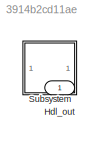
MODEL slx_3914b2cd11ae
KIND model
CONFIG AbsTol = auto
CONFIG EnableMultiTasking = off
CONFIG FixedStep = auto
CONFIG MaxStep = auto
CONFIG MinStep = auto
CONFIG RelTol = 1e-3
CONFIG SampleTimeConstraint = Unconstrained
CONFIG SolverName = VariableStepAuto
CONFIG StartTime = 0.0
CONFIG StopTime = 10.0
BLOCK [Outport] Hdl_out
  OutDataTypeStr = uint8
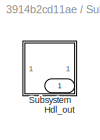
BLOCK [SubSystem] Subsystem
BLOCK [Outport] Subsystem/Hdl_out
  OutDataTypeStr = uint8
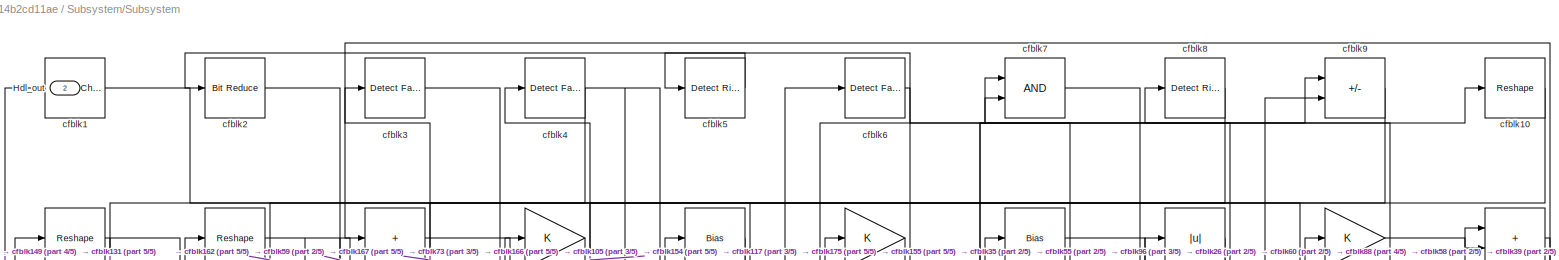
[diagram: Subsystem/Subsystem - part 1/5, full width, top band]
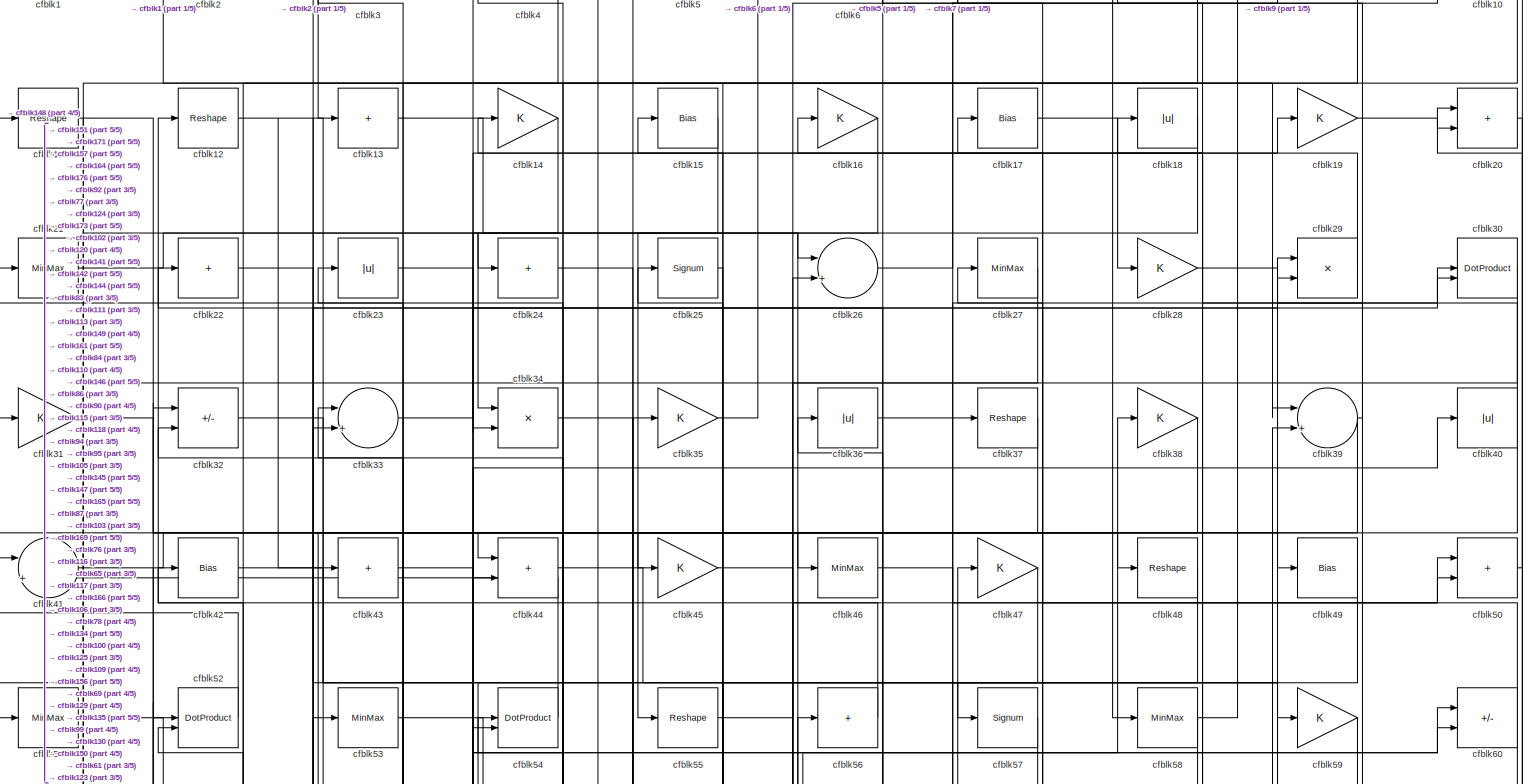
[diagram: Subsystem/Subsystem - part 2/5, full width, top band]
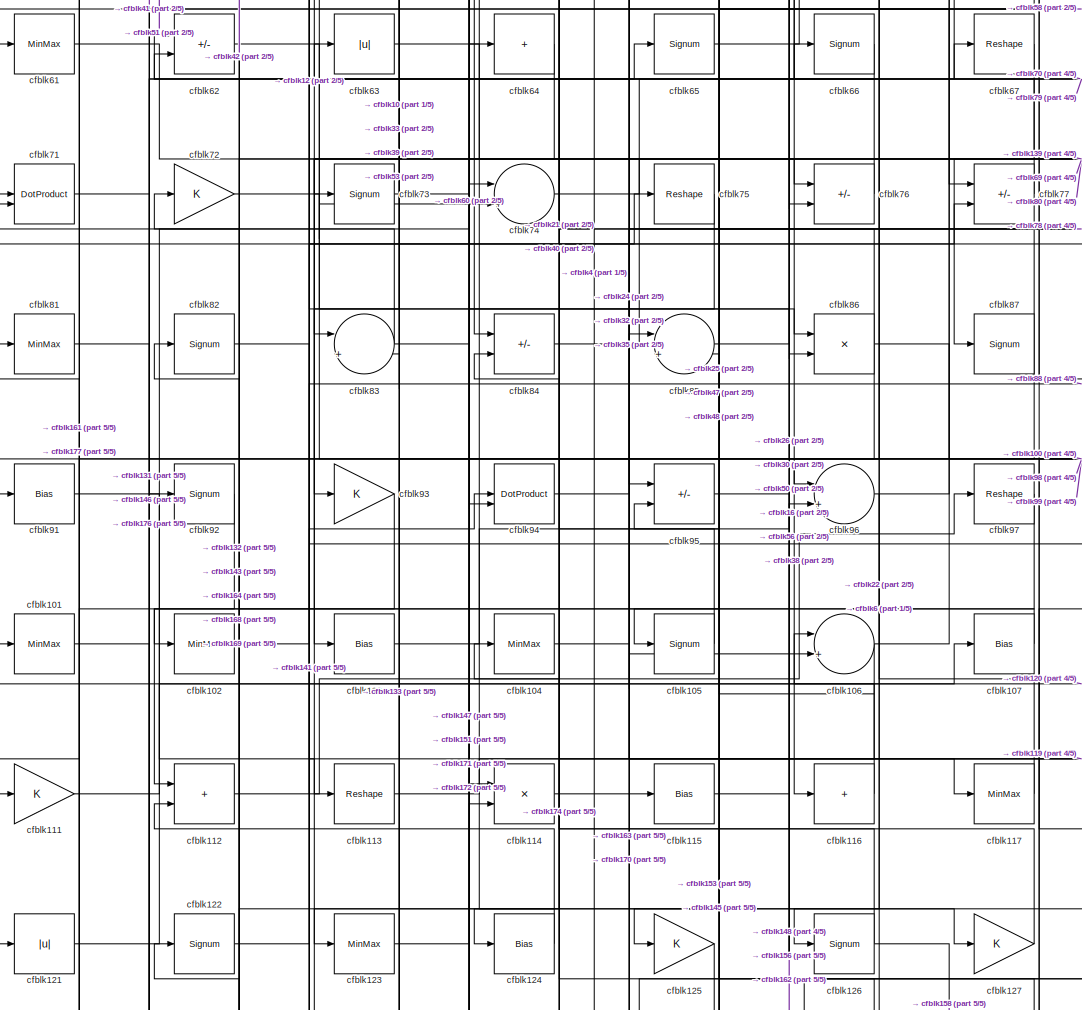
[diagram: Subsystem/Subsystem - part 3/5, central region]
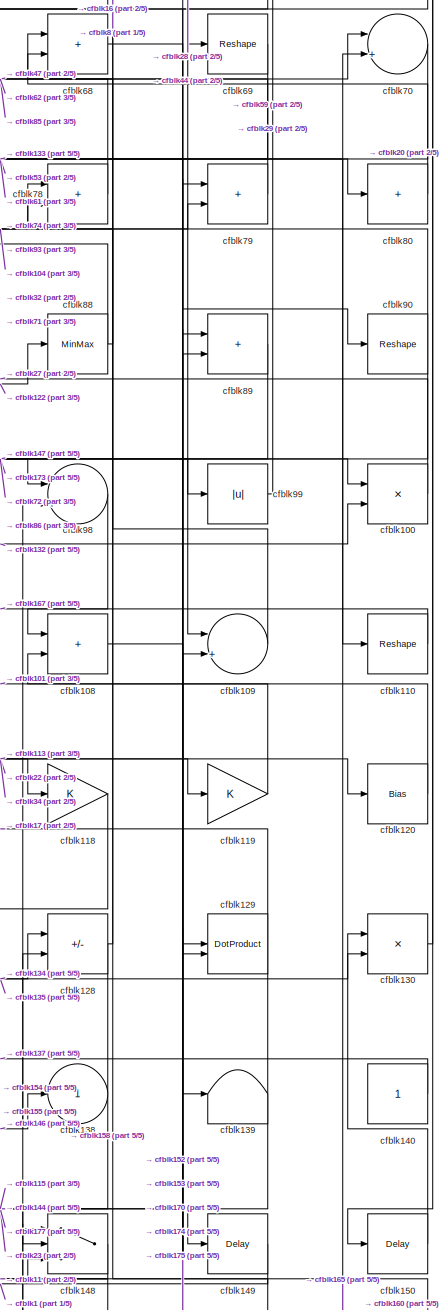
[diagram: Subsystem/Subsystem - part 4/5, middle right region]
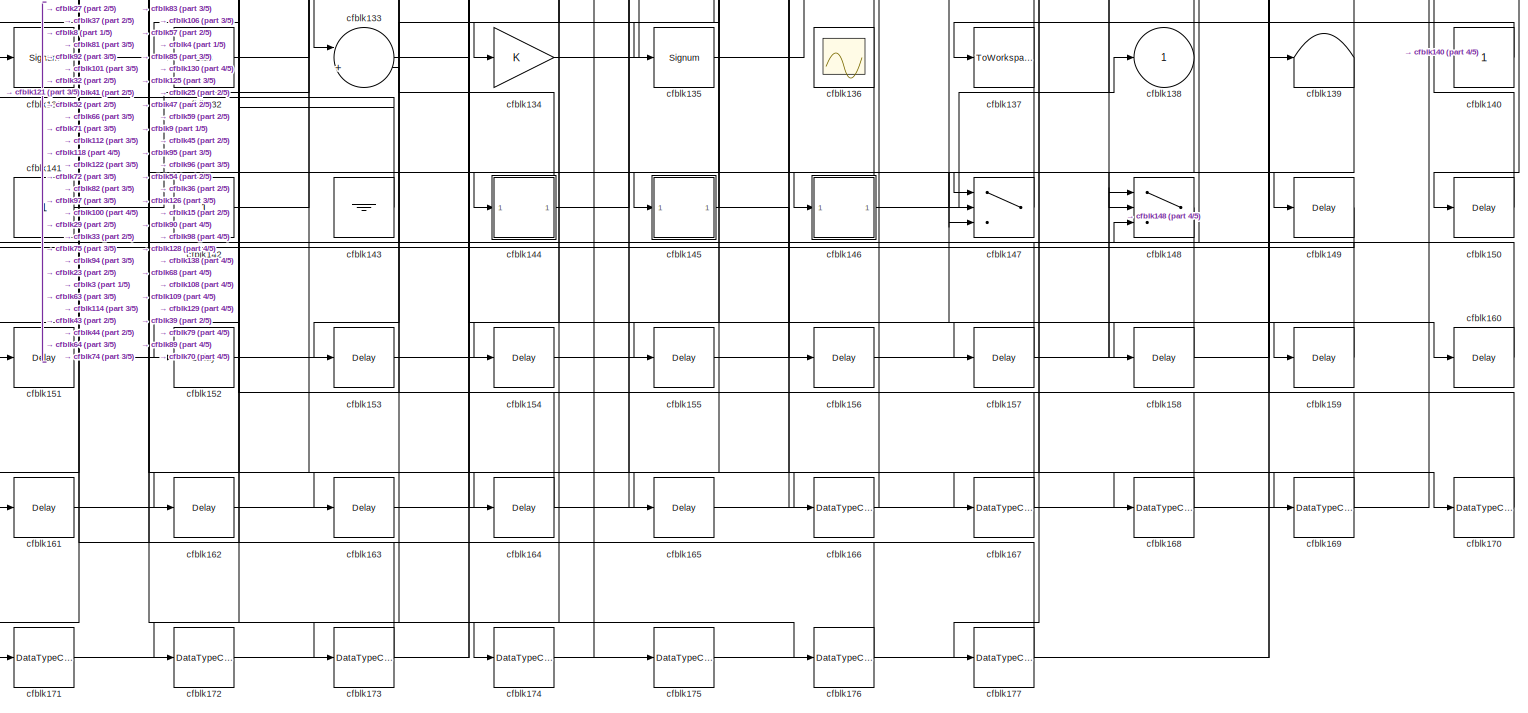
[diagram: Subsystem/Subsystem - part 5/5, full width, bottom band]
BLOCK [SubSystem] Subsystem/Subsystem
BLOCK [Outport] Subsystem/Subsystem/Hdl_out
  OutDataTypeStr = uint8
  Port = 2
BLOCK [Reference] Subsystem/Subsystem/cfblk1  REF=simulink/Logic and Bit
Operations/Detect
Change
  LibrarySourceBlock = hdlsllib/Logic and Bit\nOperations/Detect\nChange
  SourceBlock = simulink/Logic and Bit\nOperations/Detect\nChange
  SourceType = Detect Change
BLOCK [Reshape] Subsystem/Subsystem/cfblk10
BLOCK [Product] Subsystem/Subsystem/cfblk100
  Inputs = */
  OutDataTypeStr = uint8
  RndMeth = Zero
  SaturateOnIntegerOverflow = on
BLOCK [MinMax] Subsystem/Subsystem/cfblk101
  OutDataTypeStr = uint8
BLOCK [MinMax] Subsystem/Subsystem/cfblk102
  OutDataTypeStr = uint8
BLOCK [Bias] Subsystem/Subsystem/cfblk103
  Bias = 0.0
  SaturateOnIntegerOverflow = off
BLOCK [MinMax] Subsystem/Subsystem/cfblk104
  OutDataTypeStr = uint8
BLOCK [Signum] Subsystem/Subsystem/cfblk105
BLOCK [Sum] Subsystem/Subsystem/cfblk106
  Inputs = |++
  OutDataTypeStr = uint8
BLOCK [Bias] Subsystem/Subsystem/cfblk107
  Bias = 0.0
  SaturateOnIntegerOverflow = off
BLOCK [Sum] Subsystem/Subsystem/cfblk108
  IconShape = rectangular
  OutDataTypeStr = uint8
BLOCK [Sum] Subsystem/Subsystem/cfblk109
  Inputs = |++
  OutDataTypeStr = uint8
BLOCK [Reshape] Subsystem/Subsystem/cfblk11
BLOCK [Reshape] Subsystem/Subsystem/cfblk110
BLOCK [Gain] Subsystem/Subsystem/cfblk111
  OutDataTypeStr = uint8
BLOCK [Sum] Subsystem/Subsystem/cfblk112
  IconShape = rectangular
  OutDataTypeStr = uint8
BLOCK [Reshape] Subsystem/Subsystem/cfblk113
BLOCK [Product] Subsystem/Subsystem/cfblk114
  Inputs = */
  OutDataTypeStr = uint8
  RndMeth = Zero
  SaturateOnIntegerOverflow = on
BLOCK [Bias] Subsystem/Subsystem/cfblk115
  Bias = 0.0
  SaturateOnIntegerOverflow = off
BLOCK [Sum] Subsystem/Subsystem/cfblk116
  IconShape = rectangular
  Inputs = +
  OutDataTypeStr = uint8
BLOCK [MinMax] Subsystem/Subsystem/cfblk117
  OutDataTypeStr = uint8
BLOCK [Gain] Subsystem/Subsystem/cfblk118
  OutDataTypeStr = uint8
BLOCK [Gain] Subsystem/Subsystem/cfblk119
  OutDataTypeStr = uint8
BLOCK [Reshape] Subsystem/Subsystem/cfblk12
BLOCK [Bias] Subsystem/Subsystem/cfblk120
  Bias = 0.0
  SaturateOnIntegerOverflow = off
BLOCK [Abs] Subsystem/Subsystem/cfblk121
  OutDataTypeStr = uint8
  SaturateOnIntegerOverflow = off
BLOCK [Signum] Subsystem/Subsystem/cfblk122
BLOCK [MinMax] Subsystem/Subsystem/cfblk123
  OutDataTypeStr = uint8
BLOCK [Bias] Subsystem/Subsystem/cfblk124
  Bias = 0.0
  SaturateOnIntegerOverflow = off
BLOCK [Gain] Subsystem/Subsystem/cfblk125
  OutDataTypeStr = uint8
BLOCK [Signum] Subsystem/Subsystem/cfblk126
BLOCK [Gain] Subsystem/Subsystem/cfblk127
  OutDataTypeStr = uint8
BLOCK [Sum] Subsystem/Subsystem/cfblk128
  IconShape = rectangular
  Inputs = +-
  OutDataTypeStr = uint8
BLOCK [DotProduct] Subsystem/Subsystem/cfblk129
  OutDataTypeStr = uint8
BLOCK [Sum] Subsystem/Subsystem/cfblk13
  IconShape = rectangular
  Inputs = +
  OutDataTypeStr = uint8
BLOCK [Product] Subsystem/Subsystem/cfblk130
  Inputs = */
  OutDataTypeStr = uint8
  RndMeth = Zero
  SaturateOnIntegerOverflow = on
BLOCK [Signum] Subsystem/Subsystem/cfblk131
BLOCK [Bias] Subsystem/Subsystem/cfblk132
  Bias = 0.0
  SaturateOnIntegerOverflow = off
BLOCK [Sum] Subsystem/Subsystem/cfblk133
  Inputs = |++
  OutDataTypeStr = uint8
BLOCK [Gain] Subsystem/Subsystem/cfblk134
  OutDataTypeStr = uint8
BLOCK [Signum] Subsystem/Subsystem/cfblk135
BLOCK [Scope] Subsystem/Subsystem/cfblk136
  Floating = on
  NumInputPorts = 1
  ScopeSpecificationString = Simulink.scopes.TimeScopeBlockCfg('CurrentConfiguration', extmgr.ConfigurationSet(extmgr.Configuration('Core','General UI',true,'FigureColor',[0.156862745098039 0.156862745098039 0.156862745098039]),extmgr.Configuration('Core','Source UI',true),extmgr.Configuration('Sources','WiredSimulink',true,'DataLoggingSaveFormat','StructureWithTime','DataLoggingLimitDataPoints',true,'DataLoggingDecimation','...<+2674ch>
BLOCK [ToWorkspace] Subsystem/Subsystem/cfblk137
  MaxDataPoints = inf
  SampleTime = -1
  SaveFormat = Timeseries
  VariableName = simout
BLOCK [Outport] Subsystem/Subsystem/cfblk138
  OutDataTypeStr = uint8
  VectorParamsAs1DForOutWhenUnconnected = off
BLOCK [Terminator] Subsystem/Subsystem/cfblk139
BLOCK [Gain] Subsystem/Subsystem/cfblk14
  OutDataTypeStr = uint8
BLOCK [Constant] Subsystem/Subsystem/cfblk140
  OutDataTypeStr = uint8
  SampleTime = -1
BLOCK [Constant] Subsystem/Subsystem/cfblk141
  OutDataTypeStr = uint8
  SampleTime = -1
BLOCK [Constant] Subsystem/Subsystem/cfblk142
  OutDataTypeStr = uint8
  SampleTime = -1
BLOCK [Ground] Subsystem/Subsystem/cfblk143
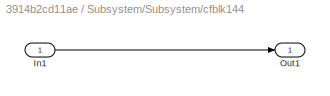
BLOCK [SubSystem] Subsystem/Subsystem/cfblk144
  LibrarySourceBlock = hdlsllib/Ports &\nSubsystems/Subsystem
BLOCK [Inport] Subsystem/Subsystem/cfblk144/In1
BLOCK [Outport] Subsystem/Subsystem/cfblk144/Out1
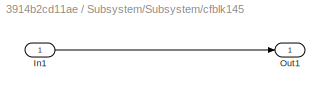
BLOCK [SubSystem] Subsystem/Subsystem/cfblk145
  LibrarySourceBlock = hdlsllib/Ports &\nSubsystems/Subsystem
BLOCK [Inport] Subsystem/Subsystem/cfblk145/In1
BLOCK [Outport] Subsystem/Subsystem/cfblk145/Out1
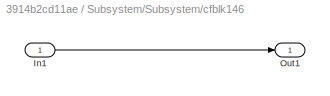
BLOCK [SubSystem] Subsystem/Subsystem/cfblk146
  LibrarySourceBlock = hdlsllib/Ports &\nSubsystems/Subsystem
BLOCK [Inport] Subsystem/Subsystem/cfblk146/In1
BLOCK [Outport] Subsystem/Subsystem/cfblk146/Out1
BLOCK [Switch] Subsystem/Subsystem/cfblk147
  InputSameDT = off
  OutDataTypeStr = uint8
  SaturateOnIntegerOverflow = off
BLOCK [Switch] Subsystem/Subsystem/cfblk148
  InputSameDT = off
  OutDataTypeStr = uint8
  SaturateOnIntegerOverflow = off
BLOCK [Delay] Subsystem/Subsystem/cfblk149
  InputPortMap = u0
  SampleTime = 1
BLOCK [Bias] Subsystem/Subsystem/cfblk15
  Bias = 0.0
  SaturateOnIntegerOverflow = off
BLOCK [Delay] Subsystem/Subsystem/cfblk150
  InputPortMap = u0
  SampleTime = 1
BLOCK [Delay] Subsystem/Subsystem/cfblk151
  InputPortMap = u0
  SampleTime = 1
BLOCK [Delay] Subsystem/Subsystem/cfblk152
  InputPortMap = u0
  SampleTime = 1
BLOCK [Delay] Subsystem/Subsystem/cfblk153
  InputPortMap = u0
  SampleTime = 1
BLOCK [Delay] Subsystem/Subsystem/cfblk154
  InputPortMap = u0
  SampleTime = 1
BLOCK [Delay] Subsystem/Subsystem/cfblk155
  InputPortMap = u0
  SampleTime = 1
BLOCK [Delay] Subsystem/Subsystem/cfblk156
  InputPortMap = u0
  SampleTime = 1
BLOCK [Delay] Subsystem/Subsystem/cfblk157
  InputPortMap = u0
  SampleTime = 1
BLOCK [Delay] Subsystem/Subsystem/cfblk158
  InputPortMap = u0
  SampleTime = 1
BLOCK [Delay] Subsystem/Subsystem/cfblk159
  InputPortMap = u0
  SampleTime = 1
BLOCK [Gain] Subsystem/Subsystem/cfblk16
  OutDataTypeStr = uint8
BLOCK [Delay] Subsystem/Subsystem/cfblk160
  InputPortMap = u0
  SampleTime = 1
BLOCK [Delay] Subsystem/Subsystem/cfblk161
  InputPortMap = u0
  SampleTime = 1
BLOCK [Delay] Subsystem/Subsystem/cfblk162
  InputPortMap = u0
  SampleTime = 1
BLOCK [Delay] Subsystem/Subsystem/cfblk163
  InputPortMap = u0
  SampleTime = 1
BLOCK [Delay] Subsystem/Subsystem/cfblk164
  InputPortMap = u0
  SampleTime = 1
BLOCK [Delay] Subsystem/Subsystem/cfblk165
  InputPortMap = u0
  SampleTime = 1
BLOCK [DataTypeConversion] Subsystem/Subsystem/cfblk166
  OutDataTypeStr = uint8
  RndMeth = Floor
  SaturateOnIntegerOverflow = off
BLOCK [DataTypeConversion] Subsystem/Subsystem/cfblk167
  OutDataTypeStr = uint8
  RndMeth = Floor
  SaturateOnIntegerOverflow = off
BLOCK [DataTypeConversion] Subsystem/Subsystem/cfblk168
  OutDataTypeStr = uint8
  RndMeth = Floor
  SaturateOnIntegerOverflow = off
BLOCK [DataTypeConversion] Subsystem/Subsystem/cfblk169
  OutDataTypeStr = uint8
  RndMeth = Floor
  SaturateOnIntegerOverflow = off
BLOCK [Bias] Subsystem/Subsystem/cfblk17
  Bias = 0.0
  SaturateOnIntegerOverflow = off
BLOCK [DataTypeConversion] Subsystem/Subsystem/cfblk170
  OutDataTypeStr = uint8
  RndMeth = Floor
  SaturateOnIntegerOverflow = off
BLOCK [DataTypeConversion] Subsystem/Subsystem/cfblk171
  OutDataTypeStr = uint8
  RndMeth = Floor
  SaturateOnIntegerOverflow = off
BLOCK [DataTypeConversion] Subsystem/Subsystem/cfblk172
  OutDataTypeStr = uint8
  RndMeth = Floor
  SaturateOnIntegerOverflow = off
BLOCK [DataTypeConversion] Subsystem/Subsystem/cfblk173
  OutDataTypeStr = uint8
  RndMeth = Floor
  SaturateOnIntegerOverflow = off
BLOCK [DataTypeConversion] Subsystem/Subsystem/cfblk174
  OutDataTypeStr = uint8
  RndMeth = Floor
  SaturateOnIntegerOverflow = off
BLOCK [DataTypeConversion] Subsystem/Subsystem/cfblk175
  OutDataTypeStr = uint8
  RndMeth = Floor
  SaturateOnIntegerOverflow = off
BLOCK [DataTypeConversion] Subsystem/Subsystem/cfblk176
  OutDataTypeStr = uint8
  RndMeth = Floor
  SaturateOnIntegerOverflow = off
BLOCK [DataTypeConversion] Subsystem/Subsystem/cfblk177
  OutDataTypeStr = uint8
  RndMeth = Floor
  SaturateOnIntegerOverflow = off
BLOCK [Abs] Subsystem/Subsystem/cfblk18
  OutDataTypeStr = uint8
  SaturateOnIntegerOverflow = off
BLOCK [Gain] Subsystem/Subsystem/cfblk19
  OutDataTypeStr = uint8
BLOCK [Reference] Subsystem/Subsystem/cfblk2  REF=hdlsllib/Logic and Bit
Operations/Bit Reduce
  SourceBlock = hdlsllib/Logic and Bit\nOperations/Bit Reduce
  SourceType = Bit Reduce
BLOCK [Sum] Subsystem/Subsystem/cfblk20
  IconShape = rectangular
  OutDataTypeStr = uint8
BLOCK [MinMax] Subsystem/Subsystem/cfblk21
  OutDataTypeStr = uint8
BLOCK [Sum] Subsystem/Subsystem/cfblk22
  IconShape = rectangular
  Inputs = +
  OutDataTypeStr = uint8
BLOCK [Abs] Subsystem/Subsystem/cfblk23
  OutDataTypeStr = uint8
  SaturateOnIntegerOverflow = off
BLOCK [Sum] Subsystem/Subsystem/cfblk24
  IconShape = rectangular
  Inputs = +
  OutDataTypeStr = uint8
BLOCK [Signum] Subsystem/Subsystem/cfblk25
BLOCK [Sum] Subsystem/Subsystem/cfblk26
  Inputs = |++
  OutDataTypeStr = uint8
BLOCK [MinMax] Subsystem/Subsystem/cfblk27
  OutDataTypeStr = uint8
BLOCK [Gain] Subsystem/Subsystem/cfblk28
  OutDataTypeStr = uint8
BLOCK [Product] Subsystem/Subsystem/cfblk29
  Inputs = */
  OutDataTypeStr = uint8
  RndMeth = Zero
  SaturateOnIntegerOverflow = on
BLOCK [Reference] Subsystem/Subsystem/cfblk3  REF=hdlsllib/Logic and Bit
Operations/Detect Fall
Negative
  SourceBlock = hdlsllib/Logic and Bit\nOperations/Detect Fall\nNegative
  SourceType = Detect Fall Negative
BLOCK [DotProduct] Subsystem/Subsystem/cfblk30
  OutDataTypeStr = uint8
BLOCK [Gain] Subsystem/Subsystem/cfblk31
  OutDataTypeStr = uint8
BLOCK [Sum] Subsystem/Subsystem/cfblk32
  IconShape = rectangular
  Inputs = +-
  OutDataTypeStr = uint8
BLOCK [Sum] Subsystem/Subsystem/cfblk33
  Inputs = |++
  OutDataTypeStr = uint8
BLOCK [Product] Subsystem/Subsystem/cfblk34
  Inputs = */
  OutDataTypeStr = uint8
  RndMeth = Zero
  SaturateOnIntegerOverflow = on
BLOCK [Gain] Subsystem/Subsystem/cfblk35
  OutDataTypeStr = uint8
BLOCK [Abs] Subsystem/Subsystem/cfblk36
  OutDataTypeStr = uint8
  SaturateOnIntegerOverflow = off
BLOCK [Reshape] Subsystem/Subsystem/cfblk37
BLOCK [Gain] Subsystem/Subsystem/cfblk38
  OutDataTypeStr = uint8
BLOCK [Sum] Subsystem/Subsystem/cfblk39
  Inputs = |++
  OutDataTypeStr = uint8
BLOCK [Reference] Subsystem/Subsystem/cfblk4  REF=hdlsllib/Logic and Bit
Operations/Detect Fall
Negative
  SourceBlock = hdlsllib/Logic and Bit\nOperations/Detect Fall\nNegative
  SourceType = Detect Fall Negative
BLOCK [Abs] Subsystem/Subsystem/cfblk40
  OutDataTypeStr = uint8
  SaturateOnIntegerOverflow = off
BLOCK [Sum] Subsystem/Subsystem/cfblk41
  Inputs = |++
  OutDataTypeStr = uint8
BLOCK [Bias] Subsystem/Subsystem/cfblk42
  Bias = 0.0
  SaturateOnIntegerOverflow = off
BLOCK [Sum] Subsystem/Subsystem/cfblk43
  IconShape = rectangular
  Inputs = +
  OutDataTypeStr = uint8
BLOCK [Sum] Subsystem/Subsystem/cfblk44
  IconShape = rectangular
  OutDataTypeStr = uint8
BLOCK [Gain] Subsystem/Subsystem/cfblk45
  OutDataTypeStr = uint8
BLOCK [MinMax] Subsystem/Subsystem/cfblk46
  OutDataTypeStr = uint8
BLOCK [Gain] Subsystem/Subsystem/cfblk47
  OutDataTypeStr = uint8
BLOCK [Reshape] Subsystem/Subsystem/cfblk48
BLOCK [Bias] Subsystem/Subsystem/cfblk49
  Bias = 0.0
  SaturateOnIntegerOverflow = off
BLOCK [Reference] Subsystem/Subsystem/cfblk5  REF=hdlsllib/Logic and Bit
Operations/Detect Rise
Positive
  SourceBlock = hdlsllib/Logic and Bit\nOperations/Detect Rise\nPositive
  SourceType = Detect Rise Positive
BLOCK [Sum] Subsystem/Subsystem/cfblk50
  IconShape = rectangular
  OutDataTypeStr = uint8
BLOCK [MinMax] Subsystem/Subsystem/cfblk51
  OutDataTypeStr = uint8
BLOCK [DotProduct] Subsystem/Subsystem/cfblk52
  OutDataTypeStr = uint8
BLOCK [MinMax] Subsystem/Subsystem/cfblk53
  OutDataTypeStr = uint8
BLOCK [DotProduct] Subsystem/Subsystem/cfblk54
  OutDataTypeStr = uint8
BLOCK [Reshape] Subsystem/Subsystem/cfblk55
BLOCK [Sum] Subsystem/Subsystem/cfblk56
  IconShape = rectangular
  Inputs = +
  OutDataTypeStr = uint8
BLOCK [Signum] Subsystem/Subsystem/cfblk57
BLOCK [MinMax] Subsystem/Subsystem/cfblk58
  OutDataTypeStr = uint8
BLOCK [Gain] Subsystem/Subsystem/cfblk59
  OutDataTypeStr = uint8
BLOCK [Reference] Subsystem/Subsystem/cfblk6  REF=hdlsllib/Logic and Bit
Operations/Detect Fall
Nonpositive
  SourceBlock = hdlsllib/Logic and Bit\nOperations/Detect Fall\nNonpositive
  SourceType = Detect Fall Nonpositive
BLOCK [Sum] Subsystem/Subsystem/cfblk60
  IconShape = rectangular
  Inputs = +-
  OutDataTypeStr = uint8
BLOCK [MinMax] Subsystem/Subsystem/cfblk61
  OutDataTypeStr = uint8
BLOCK [Sum] Subsystem/Subsystem/cfblk62
  IconShape = rectangular
  Inputs = +-
  OutDataTypeStr = uint8
BLOCK [Abs] Subsystem/Subsystem/cfblk63
  OutDataTypeStr = uint8
  SaturateOnIntegerOverflow = off
BLOCK [Sum] Subsystem/Subsystem/cfblk64
  IconShape = rectangular
  Inputs = +
  OutDataTypeStr = uint8
BLOCK [Signum] Subsystem/Subsystem/cfblk65
BLOCK [Signum] Subsystem/Subsystem/cfblk66
BLOCK [Reshape] Subsystem/Subsystem/cfblk67
BLOCK [Sum] Subsystem/Subsystem/cfblk68
  IconShape = rectangular
  OutDataTypeStr = uint8
BLOCK [Reshape] Subsystem/Subsystem/cfblk69
BLOCK [Logic] Subsystem/Subsystem/cfblk7
  AllPortsSameDT = off
  OutDataTypeStr = boolean
BLOCK [Sum] Subsystem/Subsystem/cfblk70
  Inputs = |++
  OutDataTypeStr = uint8
BLOCK [DotProduct] Subsystem/Subsystem/cfblk71
  OutDataTypeStr = uint8
BLOCK [Gain] Subsystem/Subsystem/cfblk72
  OutDataTypeStr = uint8
BLOCK [Signum] Subsystem/Subsystem/cfblk73
BLOCK [Sum] Subsystem/Subsystem/cfblk74
  Inputs = |++
  OutDataTypeStr = uint8
BLOCK [Reshape] Subsystem/Subsystem/cfblk75
BLOCK [Sum] Subsystem/Subsystem/cfblk76
  IconShape = rectangular
  Inputs = +-
  OutDataTypeStr = uint8
BLOCK [Sum] Subsystem/Subsystem/cfblk77
  IconShape = rectangular
  Inputs = +-
  OutDataTypeStr = uint8
BLOCK [Sum] Subsystem/Subsystem/cfblk78
  IconShape = rectangular
  OutDataTypeStr = uint8
BLOCK [Sum] Subsystem/Subsystem/cfblk79
  IconShape = rectangular
  OutDataTypeStr = uint8
BLOCK [Reference] Subsystem/Subsystem/cfblk8  REF=hdlsllib/Logic and Bit
Operations/Detect Rise
Positive
  SourceBlock = hdlsllib/Logic and Bit\nOperations/Detect Rise\nPositive
  SourceType = Detect Rise Positive
BLOCK [Sum] Subsystem/Subsystem/cfblk80
  IconShape = rectangular
  Inputs = +
  OutDataTypeStr = uint8
BLOCK [MinMax] Subsystem/Subsystem/cfblk81
  OutDataTypeStr = uint8
BLOCK [Signum] Subsystem/Subsystem/cfblk82
BLOCK [Sum] Subsystem/Subsystem/cfblk83
  Inputs = |++
  OutDataTypeStr = uint8
BLOCK [Sum] Subsystem/Subsystem/cfblk84
  IconShape = rectangular
  Inputs = +-
  OutDataTypeStr = uint8
BLOCK [Sum] Subsystem/Subsystem/cfblk85
  Inputs = |++
  OutDataTypeStr = uint8
BLOCK [Product] Subsystem/Subsystem/cfblk86
  Inputs = */
  OutDataTypeStr = uint8
  RndMeth = Zero
  SaturateOnIntegerOverflow = on
BLOCK [Signum] Subsystem/Subsystem/cfblk87
BLOCK [MinMax] Subsystem/Subsystem/cfblk88
  OutDataTypeStr = uint8
BLOCK [Sum] Subsystem/Subsystem/cfblk89
  IconShape = rectangular
  OutDataTypeStr = uint8
BLOCK [Sum] Subsystem/Subsystem/cfblk9
  IconShape = rectangular
  Inputs = +-
  OutDataTypeStr = uint8
BLOCK [Reshape] Subsystem/Subsystem/cfblk90
BLOCK [Bias] Subsystem/Subsystem/cfblk91
  Bias = 0.0
  SaturateOnIntegerOverflow = off
BLOCK [Signum] Subsystem/Subsystem/cfblk92
BLOCK [Gain] Subsystem/Subsystem/cfblk93
  OutDataTypeStr = uint8
BLOCK [DotProduct] Subsystem/Subsystem/cfblk94
  OutDataTypeStr = uint8
BLOCK [Sum] Subsystem/Subsystem/cfblk95
  IconShape = rectangular
  Inputs = +-
  OutDataTypeStr = uint8
BLOCK [Sum] Subsystem/Subsystem/cfblk96
  Inputs = |++
  OutDataTypeStr = uint8
BLOCK [Reshape] Subsystem/Subsystem/cfblk97
BLOCK [Sum] Subsystem/Subsystem/cfblk98
  Inputs = |++
  OutDataTypeStr = uint8
BLOCK [Abs] Subsystem/Subsystem/cfblk99
  OutDataTypeStr = uint8
  SaturateOnIntegerOverflow = off
LINE Subsystem/Subsystem/cfblk100:1 -> Subsystem/Subsystem/cfblk27:1
LINE Subsystem/Subsystem/cfblk101:1 -> Subsystem/Subsystem/cfblk163:1
LINE Subsystem/Subsystem/cfblk102:1 -> Subsystem/Subsystem/cfblk53:1
LINE Subsystem/Subsystem/cfblk103:1 -> Subsystem/Subsystem/cfblk50:1
NET Subsystem/Subsystem/cfblk104:1 -> Subsystem/Subsystem/cfblk106:2, Subsystem/Subsystem/cfblk78:1
LINE Subsystem/Subsystem/cfblk105:1 -> Subsystem/Subsystem/cfblk4:1
NET Subsystem/Subsystem/cfblk106:1 -> Subsystem/Subsystem/cfblk174:1, Subsystem/Subsystem/cfblk30:1
LINE Subsystem/Subsystem/cfblk107:1 -> Subsystem/Subsystem/cfblk102:1
LINE Subsystem/Subsystem/cfblk108:1 -> Subsystem/Subsystem/cfblk160:1
LINE Subsystem/Subsystem/cfblk109:1 -> Subsystem/Subsystem/cfblk16:1
LINE Subsystem/Subsystem/cfblk10:1 -> Subsystem/Subsystem/cfblk73:1
LINE Subsystem/Subsystem/cfblk110:1 -> Subsystem/Subsystem/cfblk108:1
LINE Subsystem/Subsystem/cfblk111:1 -> Subsystem/Subsystem/cfblk60:2
NET Subsystem/Subsystem/cfblk112:1 -> Subsystem/Subsystem/cfblk77:2, Subsystem/Subsystem/cfblk97:1
NET Subsystem/Subsystem/cfblk113:1 -> Subsystem/Subsystem/cfblk119:1, Subsystem/Subsystem/cfblk40:1
LINE Subsystem/Subsystem/cfblk114:1 -> Subsystem/Subsystem/cfblk170:1
NET Subsystem/Subsystem/cfblk115:1 -> Subsystem/Subsystem/cfblk148:2, Subsystem/Subsystem/cfblk26:2
NET Subsystem/Subsystem/cfblk116:1 -> Subsystem/Subsystem/cfblk106:1, Subsystem/Subsystem/cfblk85:2
LINE Subsystem/Subsystem/cfblk117:1 -> Subsystem/Subsystem/cfblk22:1
LINE Subsystem/Subsystem/cfblk118:1 -> Subsystem/Subsystem/cfblk152:1
LINE Subsystem/Subsystem/cfblk119:1 -> Subsystem/Subsystem/cfblk108:2
NET Subsystem/Subsystem/cfblk11:1 -> Subsystem/Subsystem/cfblk44:1, Subsystem/Subsystem/cfblk51:1
LINE Subsystem/Subsystem/cfblk120:1 -> Subsystem/Subsystem/cfblk101:1
NET Subsystem/Subsystem/cfblk121:1 -> Subsystem/Subsystem/cfblk107:1, Subsystem/Subsystem/cfblk147:2
LINE Subsystem/Subsystem/cfblk122:1 -> Subsystem/Subsystem/cfblk88:1
LINE Subsystem/Subsystem/cfblk123:1 -> Subsystem/Subsystem/cfblk30:2
NET Subsystem/Subsystem/cfblk124:1 -> Subsystem/Subsystem/cfblk123:1, Subsystem/Subsystem/cfblk42:1
LINE Subsystem/Subsystem/cfblk125:1 -> Subsystem/Subsystem/cfblk153:1
NET Subsystem/Subsystem/cfblk126:1 -> Subsystem/Subsystem/cfblk158:1, Subsystem/Subsystem/cfblk84:2
LINE Subsystem/Subsystem/cfblk127:1 -> Subsystem/Subsystem/cfblk104:1
NET Subsystem/Subsystem/cfblk128:1 -> Subsystem/Subsystem/cfblk144:1, Subsystem/Subsystem/cfblk78:2
NET Subsystem/Subsystem/cfblk129:1 -> Subsystem/Subsystem/cfblk177:1, Subsystem/Subsystem/cfblk17:1
NET Subsystem/Subsystem/cfblk12:1 -> Subsystem/Subsystem/cfblk43:1, Subsystem/Subsystem/cfblk86:1, Subsystem/Subsystem/cfblk86:2
LINE Subsystem/Subsystem/cfblk130:1 -> Subsystem/Subsystem/cfblk20:1
LINE Subsystem/Subsystem/cfblk131:1 -> Subsystem/Subsystem/cfblk66:1
NET Subsystem/Subsystem/cfblk132:1 -> Subsystem/Subsystem/cfblk100:2, Subsystem/Subsystem/cfblk94:1
NET Subsystem/Subsystem/cfblk133:1 -> Subsystem/Subsystem/cfblk63:1, Subsystem/Subsystem/cfblk64:1
LINE Subsystem/Subsystem/cfblk134:1 -> Subsystem/Subsystem/cfblk130:1
LINE Subsystem/Subsystem/cfblk135:1 -> Subsystem/Subsystem/cfblk128:1
LINE Subsystem/Subsystem/cfblk13:1 -> Subsystem/Subsystem/cfblk26:1
LINE Subsystem/Subsystem/cfblk140:1 -> Subsystem/Subsystem/cfblk137:1
NET Subsystem/Subsystem/cfblk141:1 -> Subsystem/Subsystem/cfblk29:2, Subsystem/Subsystem/cfblk75:1
LINE Subsystem/Subsystem/cfblk142:1 -> Subsystem/Subsystem/cfblk33:2
NET Subsystem/Subsystem/cfblk143:1 -> Subsystem/Subsystem/cfblk121:1, Subsystem/Subsystem/cfblk122:1
LINE Subsystem/Subsystem/cfblk144/In1:1 -> Subsystem/Subsystem/cfblk144/Out1:1
NET Subsystem/Subsystem/cfblk144:1 -> Subsystem/Subsystem/cfblk23:1, Subsystem/Subsystem/cfblk79:2
LINE Subsystem/Subsystem/cfblk145/In1:1 -> Subsystem/Subsystem/cfblk145/Out1:1
NET Subsystem/Subsystem/cfblk145:1 -> Subsystem/Subsystem/cfblk159:1, Subsystem/Subsystem/cfblk95:2
LINE Subsystem/Subsystem/cfblk146/In1:1 -> Subsystem/Subsystem/cfblk146/Out1:1
NET Subsystem/Subsystem/cfblk146:1 -> Subsystem/Subsystem/cfblk138:1, Subsystem/Subsystem/cfblk54:1, Subsystem/Subsystem/cfblk98:2
LINE Subsystem/Subsystem/cfblk147:1 -> Subsystem/Subsystem/cfblk15:1
LINE Subsystem/Subsystem/cfblk148:1 -> Subsystem/Subsystem/cfblk11:1
LINE Subsystem/Subsystem/cfblk149:1 -> Subsystem/Subsystem/cfblk1:1
LINE Subsystem/Subsystem/cfblk14:1 -> Subsystem/Subsystem/cfblk34:1
LINE Subsystem/Subsystem/cfblk150:1 -> Subsystem/Subsystem/cfblk130:2
LINE Subsystem/Subsystem/cfblk151:1 -> Subsystem/Subsystem/cfblk74:1
LINE Subsystem/Subsystem/cfblk152:1 -> Subsystem/Subsystem/cfblk109:2
LINE Subsystem/Subsystem/cfblk153:1 -> Subsystem/Subsystem/cfblk79:1
LINE Subsystem/Subsystem/cfblk154:1 -> Subsystem/Subsystem/cfblk148:1
LINE Subsystem/Subsystem/cfblk155:1 -> Subsystem/Subsystem/cfblk128:2
LINE Subsystem/Subsystem/cfblk156:1 -> Subsystem/Subsystem/cfblk39:2
LINE Subsystem/Subsystem/cfblk157:1 -> Subsystem/Subsystem/cfblk32:1
LINE Subsystem/Subsystem/cfblk158:1 -> Subsystem/Subsystem/cfblk148:3
LINE Subsystem/Subsystem/cfblk159:1 -> Subsystem/Subsystem/cfblk133:2
LINE Subsystem/Subsystem/cfblk15:1 -> Subsystem/Subsystem/cfblk55:1
LINE Subsystem/Subsystem/cfblk160:1 -> Subsystem/Subsystem/cfblk68:2
LINE Subsystem/Subsystem/cfblk161:1 -> Subsystem/Subsystem/cfblk44:2
LINE Subsystem/Subsystem/cfblk162:1 -> Subsystem/Subsystem/cfblk96:2
LINE Subsystem/Subsystem/cfblk163:1 -> Subsystem/Subsystem/cfblk85:1
LINE Subsystem/Subsystem/cfblk164:1 -> Subsystem/Subsystem/cfblk112:2
LINE Subsystem/Subsystem/cfblk165:1 -> Subsystem/Subsystem/cfblk70:2
LINE Subsystem/Subsystem/cfblk166:1 -> Subsystem/Subsystem/cfblk36:1
LINE Subsystem/Subsystem/cfblk167:1 -> Subsystem/Subsystem/cfblk3:1
LINE Subsystem/Subsystem/cfblk168:1 -> Subsystem/Subsystem/cfblk72:1
LINE Subsystem/Subsystem/cfblk169:1 -> Subsystem/Subsystem/cfblk82:1
NET Subsystem/Subsystem/cfblk16:1 -> Subsystem/Subsystem/cfblk116:1, Subsystem/Subsystem/cfblk34:2
LINE Subsystem/Subsystem/cfblk170:1 -> Subsystem/Subsystem/cfblk129:1
LINE Subsystem/Subsystem/cfblk171:1 -> Subsystem/Subsystem/cfblk114:1
LINE Subsystem/Subsystem/cfblk172:1 -> Subsystem/Subsystem/cfblk114:2
LINE Subsystem/Subsystem/cfblk173:1 -> Subsystem/Subsystem/cfblk52:2
LINE Subsystem/Subsystem/cfblk174:1 -> Subsystem/Subsystem/cfblk89:1
LINE Subsystem/Subsystem/cfblk175:1 -> Subsystem/Subsystem/cfblk89:2
LINE Subsystem/Subsystem/cfblk176:1 -> Subsystem/Subsystem/cfblk52:1
LINE Subsystem/Subsystem/cfblk177:1 -> Subsystem/Subsystem/cfblk81:1
LINE Subsystem/Subsystem/cfblk17:1 -> Subsystem/Subsystem/cfblk28:1
LINE Subsystem/Subsystem/cfblk18:1 -> Subsystem/Subsystem/cfblk41:1
LINE Subsystem/Subsystem/cfblk19:1 -> Subsystem/Subsystem/cfblk20:2
NET Subsystem/Subsystem/cfblk1:1 -> Subsystem/Subsystem/Hdl_out:1, Subsystem/Subsystem/cfblk39:1
LINE Subsystem/Subsystem/cfblk20:1 -> Subsystem/Subsystem/cfblk150:1
LINE Subsystem/Subsystem/cfblk21:1 -> Subsystem/Subsystem/cfblk24:1
NET Subsystem/Subsystem/cfblk22:1 -> Subsystem/Subsystem/cfblk120:1, Subsystem/Subsystem/cfblk46:1
LINE Subsystem/Subsystem/cfblk23:1 -> Subsystem/Subsystem/cfblk149:1
LINE Subsystem/Subsystem/cfblk24:1 -> Subsystem/Subsystem/cfblk95:1
LINE Subsystem/Subsystem/cfblk25:1 -> Subsystem/Subsystem/cfblk145:1
LINE Subsystem/Subsystem/cfblk26:1 -> Subsystem/Subsystem/cfblk9:1
LINE Subsystem/Subsystem/cfblk27:1 -> Subsystem/Subsystem/cfblk151:1
LINE Subsystem/Subsystem/cfblk28:1 -> Subsystem/Subsystem/cfblk109:1
LINE Subsystem/Subsystem/cfblk29:1 -> Subsystem/Subsystem/cfblk14:1
LINE Subsystem/Subsystem/cfblk2:1 -> Subsystem/Subsystem/cfblk59:1
LINE Subsystem/Subsystem/cfblk30:1 -> Subsystem/Subsystem/cfblk76:2
NET Subsystem/Subsystem/cfblk31:1 -> Subsystem/Subsystem/cfblk45:1, Subsystem/Subsystem/cfblk49:1
LINE Subsystem/Subsystem/cfblk32:1 -> Subsystem/Subsystem/cfblk115:1
LINE Subsystem/Subsystem/cfblk33:1 -> Subsystem/Subsystem/cfblk19:1
LINE Subsystem/Subsystem/cfblk34:1 -> Subsystem/Subsystem/cfblk118:1
LINE Subsystem/Subsystem/cfblk35:1 -> Subsystem/Subsystem/cfblk6:1
LINE Subsystem/Subsystem/cfblk36:1 -> Subsystem/Subsystem/cfblk37:1
LINE Subsystem/Subsystem/cfblk37:1 -> Subsystem/Subsystem/cfblk171:1
LINE Subsystem/Subsystem/cfblk38:1 -> Subsystem/Subsystem/cfblk103:1
NET Subsystem/Subsystem/cfblk39:1 -> Subsystem/Subsystem/cfblk5:1, Subsystem/Subsystem/cfblk83:1
LINE Subsystem/Subsystem/cfblk3:1 -> Subsystem/Subsystem/cfblk166:1
NET Subsystem/Subsystem/cfblk40:1 -> Subsystem/Subsystem/cfblk124:1, Subsystem/Subsystem/cfblk18:1
NET Subsystem/Subsystem/cfblk41:1 -> Subsystem/Subsystem/cfblk164:1, Subsystem/Subsystem/cfblk48:1, Subsystem/Subsystem/cfblk92:1
LINE Subsystem/Subsystem/cfblk42:1 -> Subsystem/Subsystem/cfblk54:2
LINE Subsystem/Subsystem/cfblk43:1 -> Subsystem/Subsystem/cfblk157:1
LINE Subsystem/Subsystem/cfblk44:1 -> Subsystem/Subsystem/cfblk69:1
LINE Subsystem/Subsystem/cfblk45:1 -> Subsystem/Subsystem/cfblk169:1
LINE Subsystem/Subsystem/cfblk46:1 -> Subsystem/Subsystem/cfblk50:2
NET Subsystem/Subsystem/cfblk47:1 -> Subsystem/Subsystem/cfblk165:1, Subsystem/Subsystem/cfblk84:1
LINE Subsystem/Subsystem/cfblk48:1 -> Subsystem/Subsystem/cfblk105:1
LINE Subsystem/Subsystem/cfblk49:1 -> Subsystem/Subsystem/cfblk57:1
NET Subsystem/Subsystem/cfblk4:1 -> Subsystem/Subsystem/cfblk117:1, Subsystem/Subsystem/cfblk162:1, Subsystem/Subsystem/cfblk175:1
LINE Subsystem/Subsystem/cfblk50:1 -> Subsystem/Subsystem/cfblk13:1
LINE Subsystem/Subsystem/cfblk51:1 -> Subsystem/Subsystem/cfblk77:1
LINE Subsystem/Subsystem/cfblk52:1 -> Subsystem/Subsystem/cfblk31:1
NET Subsystem/Subsystem/cfblk53:1 -> Subsystem/Subsystem/cfblk110:1, Subsystem/Subsystem/cfblk83:2
LINE Subsystem/Subsystem/cfblk54:1 -> Subsystem/Subsystem/cfblk41:2
LINE Subsystem/Subsystem/cfblk55:1 -> Subsystem/Subsystem/cfblk7:1
LINE Subsystem/Subsystem/cfblk56:1 -> Subsystem/Subsystem/cfblk12:1
LINE Subsystem/Subsystem/cfblk57:1 -> Subsystem/Subsystem/cfblk134:1
NET Subsystem/Subsystem/cfblk58:1 -> Subsystem/Subsystem/cfblk125:1, Subsystem/Subsystem/cfblk9:2
NET Subsystem/Subsystem/cfblk59:1 -> Subsystem/Subsystem/cfblk129:2, Subsystem/Subsystem/cfblk135:1
LINE Subsystem/Subsystem/cfblk5:1 -> Subsystem/Subsystem/cfblk2:1
NET Subsystem/Subsystem/cfblk60:1 -> Subsystem/Subsystem/cfblk61:1, Subsystem/Subsystem/cfblk7:2
LINE Subsystem/Subsystem/cfblk61:1 -> Subsystem/Subsystem/cfblk139:1
LINE Subsystem/Subsystem/cfblk62:1 -> Subsystem/Subsystem/cfblk74:2
LINE Subsystem/Subsystem/cfblk63:1 -> Subsystem/Subsystem/cfblk127:1
LINE Subsystem/Subsystem/cfblk64:1 -> Subsystem/Subsystem/cfblk132:1
LINE Subsystem/Subsystem/cfblk65:1 -> Subsystem/Subsystem/cfblk38:1
LINE Subsystem/Subsystem/cfblk66:1 -> Subsystem/Subsystem/cfblk62:2
LINE Subsystem/Subsystem/cfblk67:1 -> Subsystem/Subsystem/cfblk87:1
LINE Subsystem/Subsystem/cfblk68:1 -> Subsystem/Subsystem/cfblk90:1
LINE Subsystem/Subsystem/cfblk69:1 -> Subsystem/Subsystem/cfblk93:1
LINE Subsystem/Subsystem/cfblk6:1 -> Subsystem/Subsystem/cfblk96:1
LINE Subsystem/Subsystem/cfblk70:1 -> Subsystem/Subsystem/cfblk133:1
NET Subsystem/Subsystem/cfblk71:1 -> Subsystem/Subsystem/cfblk146:1, Subsystem/Subsystem/cfblk65:1, Subsystem/Subsystem/cfblk98:1
LINE Subsystem/Subsystem/cfblk72:1 -> Subsystem/Subsystem/cfblk100:1
LINE Subsystem/Subsystem/cfblk73:1 -> Subsystem/Subsystem/cfblk76:1
LINE Subsystem/Subsystem/cfblk74:1 -> Subsystem/Subsystem/cfblk80:1
LINE Subsystem/Subsystem/cfblk75:1 -> Subsystem/Subsystem/cfblk94:2
LINE Subsystem/Subsystem/cfblk76:1 -> Subsystem/Subsystem/cfblk56:1
LINE Subsystem/Subsystem/cfblk77:1 -> Subsystem/Subsystem/cfblk33:1
LINE Subsystem/Subsystem/cfblk78:1 -> Subsystem/Subsystem/cfblk47:1
LINE Subsystem/Subsystem/cfblk79:1 -> Subsystem/Subsystem/cfblk62:1
LINE Subsystem/Subsystem/cfblk7:1 -> Subsystem/Subsystem/cfblk58:1
LINE Subsystem/Subsystem/cfblk80:1 -> Subsystem/Subsystem/cfblk68:1
LINE Subsystem/Subsystem/cfblk81:1 -> Subsystem/Subsystem/cfblk176:1
LINE Subsystem/Subsystem/cfblk82:1 -> Subsystem/Subsystem/cfblk168:1
NET Subsystem/Subsystem/cfblk83:1 -> Subsystem/Subsystem/cfblk147:3, Subsystem/Subsystem/cfblk60:1, Subsystem/Subsystem/cfblk71:2
LINE Subsystem/Subsystem/cfblk84:1 -> Subsystem/Subsystem/cfblk67:1
LINE Subsystem/Subsystem/cfblk85:1 -> Subsystem/Subsystem/cfblk70:1
NET Subsystem/Subsystem/cfblk86:1 -> Subsystem/Subsystem/cfblk111:1, Subsystem/Subsystem/cfblk21:1, Subsystem/Subsystem/cfblk99:1
NET Subsystem/Subsystem/cfblk87:1 -> Subsystem/Subsystem/cfblk25:1, Subsystem/Subsystem/cfblk91:1
NET Subsystem/Subsystem/cfblk88:1 -> Subsystem/Subsystem/cfblk71:1, Subsystem/Subsystem/cfblk8:1
LINE Subsystem/Subsystem/cfblk89:1 -> Subsystem/Subsystem/cfblk173:1
LINE Subsystem/Subsystem/cfblk8:1 -> Subsystem/Subsystem/cfblk131:1
NET Subsystem/Subsystem/cfblk90:1 -> Subsystem/Subsystem/cfblk147:1, Subsystem/Subsystem/cfblk32:2
LINE Subsystem/Subsystem/cfblk91:1 -> Subsystem/Subsystem/cfblk113:1
LINE Subsystem/Subsystem/cfblk92:1 -> Subsystem/Subsystem/cfblk161:1
LINE Subsystem/Subsystem/cfblk93:1 -> Subsystem/Subsystem/cfblk112:1
LINE Subsystem/Subsystem/cfblk94:1 -> Subsystem/Subsystem/cfblk35:1
LINE Subsystem/Subsystem/cfblk95:1 -> Subsystem/Subsystem/cfblk156:1
NET Subsystem/Subsystem/cfblk96:1 -> Subsystem/Subsystem/cfblk10:1, Subsystem/Subsystem/cfblk126:1
LINE Subsystem/Subsystem/cfblk97:1 -> Subsystem/Subsystem/cfblk172:1
LINE Subsystem/Subsystem/cfblk98:1 -> Subsystem/Subsystem/cfblk167:1
LINE Subsystem/Subsystem/cfblk99:1 -> Subsystem/Subsystem/cfblk29:1
NET Subsystem/Subsystem/cfblk9:1 -> Subsystem/Subsystem/cfblk154:1, Subsystem/Subsystem/cfblk155:1
note: NET lines group one-source signal fan-out (src -> all destinations, sorted); 1:1 wires keep LINE
